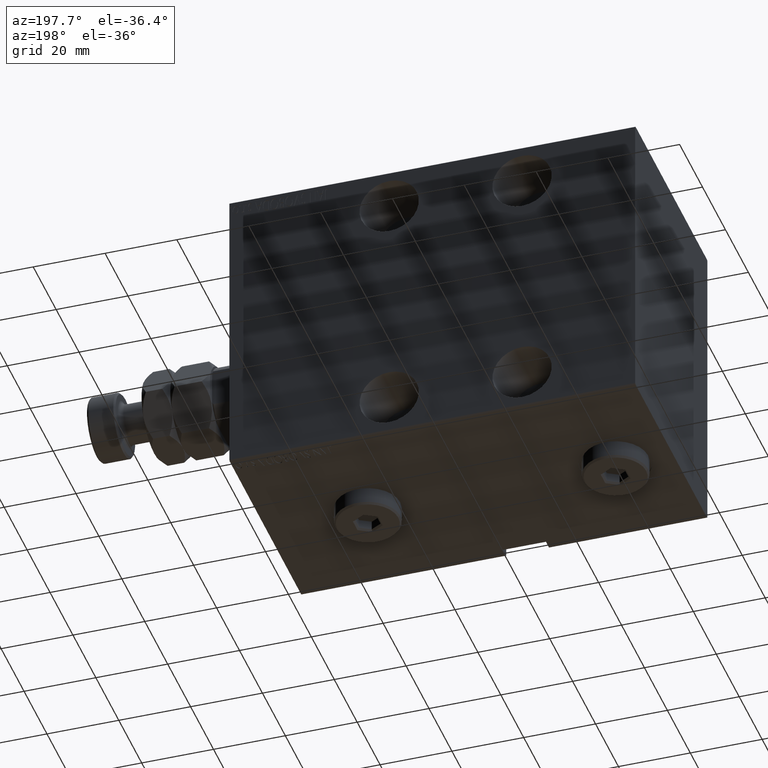
[diagram: clean part render]
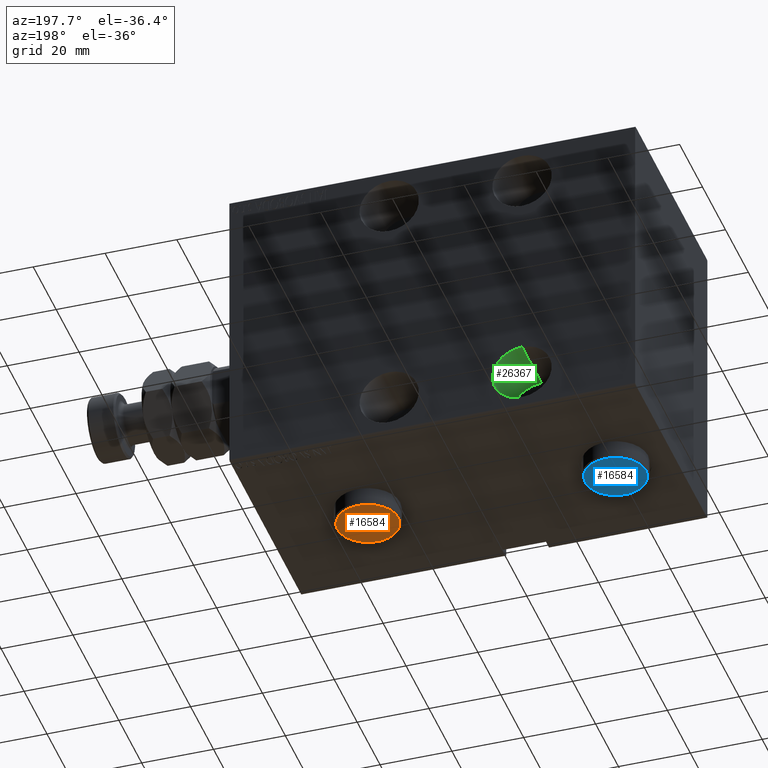
[diagram: same view with three faces highlighted in distinct colors, each labeled with its STEP entity id]
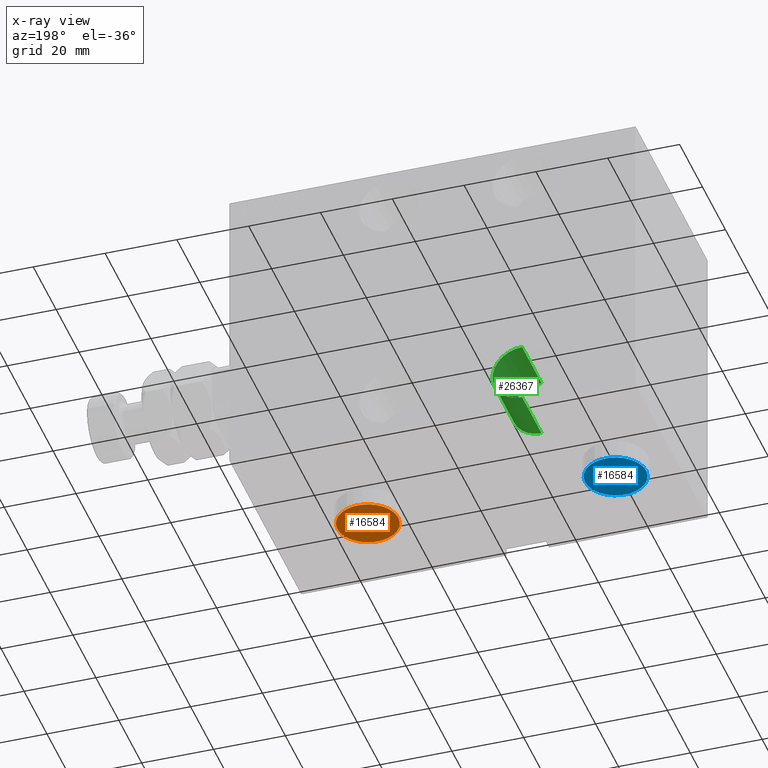
[diagram: x-ray of the same camera — body ghosted, the three highlighted faces saturated]
A machine part, auxiliary view with three faces highlighted in distinct colors.
The next image is the same camera in x-ray (body ghosted, the three faces saturated) — at least one of them is partly hidden behind the body in this view.
Their STEP definitions:

[orange] entity #16584 — the highlighted planar face has unit normal (-0, 0, -1).
#369 = LINE ( 'NONE', #42717, #24303 ) ;
#1973 = PLANE ( 'NONE',  #27004 ) ;
#2327 = DIRECTION ( 'NONE',  ( 0.000000000000000000, 0.000000000000000000, 1.000000000000000000 ) ) ;
#2999 = ORIENTED_EDGE ( 'NONE', *, *, #31758, .T. ) ;
#3183 = VERTEX_POINT ( 'NONE', #15178 ) ;
#4090 = DIRECTION ( 'NONE',  ( 0.000000000000000000, 1.000000000000000000, 0.000000000000000000 ) ) ;
#4378 = VECTOR ( 'NONE', #21003, 1000.000000000000000 ) ;
#5583 = CARTESIAN_POINT ( 'NONE',  ( -3.500000000000006661, 2.020725942163692945, 5.000000000000000000 ) ) ;
#5883 = ORIENTED_EDGE ( 'NONE', *, *, #28953, .T. ) ;
#6840 = CARTESIAN_POINT ( 'NONE',  ( -0.2500000000000027756, 3.897114317029978459, 5.000000000000000000 ) ) ;
#7716 = EDGE_CURVE ( 'NONE', #38870, #3183, #23729, .T. ) ;
#9199 = EDGE_CURVE ( 'NONE', #11310, #22625, #44358, .T. ) ;
#9686 = VERTEX_POINT ( 'NONE', #28741 ) ;
#10244 = CARTESIAN_POINT ( 'NONE',  ( 8.500000000000010658, 1.071565949253934716E-15, 5.000000000000000000 ) ) ;
#10932 = DIRECTION ( 'NONE',  ( 1.000000000000000000, 0.000000000000000000, 0.000000000000000000 ) ) ;
#11310 = VERTEX_POINT ( 'NONE', #36276 ) ;
#11662 = ORIENTED_EDGE ( 'NONE', *, *, #7716, .T. ) ;
#11986 = DIRECTION ( 'NONE',  ( 0.000000000000000000, 0.000000000000000000, 1.000000000000000000 ) ) ;
#12648 = EDGE_CURVE ( 'NONE', #3183, #9686, #40128, .T. ) ;
#13691 = CARTESIAN_POINT ( 'NONE',  ( 0.000000000000000000, 0.000000000000000000, 5.000000000000000000 ) ) ;
#13907 = CARTESIAN_POINT ( 'NONE',  ( 3.500000000000006661, 2.020725942163694722, 5.000000000000000000 ) ) ;
#14795 = LINE ( 'NONE', #42022, #38463 ) ;
#15178 = CARTESIAN_POINT ( 'NONE',  ( 3.500000000000006661, -2.020725942163693833, 5.000000000000000000 ) ) ;
#15456 = DIRECTION ( 'NONE',  ( -0.8660254037844387076, -0.4999999999999998890, 0.000000000000000000 ) ) ;
#15643 = ORIENTED_EDGE ( 'NONE', *, *, #34735, .T. ) ;
#16584 = ADVANCED_FACE ( 'NONE', ( #40829, #43860 ), #1973, .T. ) ;
#17440 = DIRECTION ( 'NONE',  ( 0.000000000000000000, 0.000000000000000000, 1.000000000000000000 ) ) ;
#19048 = CARTESIAN_POINT ( 'NONE',  ( -3.500000000000006661, -2.020725942163694278, 5.000000000000000000 ) ) ;
#19638 = EDGE_LOOP ( 'NONE', ( #34733, #5883 ) ) ;
#20621 = VECTOR ( 'NONE', #37263, 1000.000000000000000 ) ;
#21003 = DIRECTION ( 'NONE',  ( 0.8660254037844387076, 0.4999999999999998335, 0.000000000000000000 ) ) ;
#21234 = LINE ( 'NONE', #6840, #4378 ) ;
#21466 = VERTEX_POINT ( 'NONE', #19048 ) ;
#22423 = CARTESIAN_POINT ( 'NONE',  ( 0.2500000000000027756, -3.897114317029979347, 5.000000000000000000 ) ) ;
#22625 = VERTEX_POINT ( 'NONE', #10244 ) ;
#23499 = CARTESIAN_POINT ( 'NONE',  ( 3.500000000000006661, -1.732050807568878303, 5.000000000000000000 ) ) ;
#23620 = LINE ( 'NONE', #44133, #40064 ) ;
#23729 = LINE ( 'NONE', #23499, #20621 ) ;
#24245 = ORIENTED_EDGE ( 'NONE', *, *, #30310, .T. ) ;
#24303 = VECTOR ( 'NONE', #25497, 1000.000000000000000 ) ;
#25497 = DIRECTION ( 'NONE',  ( 0.8660254037844387076, -0.4999999999999998890, 0.000000000000000000 ) ) ;
#26166 = DIRECTION ( 'NONE',  ( 1.000000000000000000, 0.000000000000000000, -0.000000000000000000 ) ) ;
#26397 = CARTESIAN_POINT ( 'NONE',  ( 0.000000000000000000, 0.000000000000000000, 5.000000000000000000 ) ) ;
#26451 = DIRECTION ( 'NONE',  ( -0.8660254037844385966, 0.4999999999999999445, 0.000000000000000000 ) ) ;
#27004 = AXIS2_PLACEMENT_3D ( 'NONE', #26397, #11986, #26166 ) ;
#28389 = CARTESIAN_POINT ( 'NONE',  ( 0.000000000000000000, 0.000000000000000000, 5.000000000000000000 ) ) ;
#28741 = CARTESIAN_POINT ( 'NONE',  ( -1.006139216460143630E-15, -4.041451884327387667, 5.000000000000000000 ) ) ;
#28953 = EDGE_CURVE ( 'NONE', #22625, #11310, #35409, .T. ) ;
#29346 = VERTEX_POINT ( 'NONE', #42648 ) ;
#30310 = EDGE_CURVE ( 'NONE', #29346, #38870, #369, .T. ) ;
#31063 = VECTOR ( 'NONE', #15456, 1000.000000000000000 ) ;
#31287 = VERTEX_POINT ( 'NONE', #5583 ) ;
#31758 = EDGE_CURVE ( 'NONE', #21466, #31287, #14795, .T. ) ;
#32284 = ORIENTED_EDGE ( 'NONE', *, *, #12648, .T. ) ;
#34641 = DIRECTION ( 'NONE',  ( 1.000000000000000000, 0.000000000000000000, 0.000000000000000000 ) ) ;
#34733 = ORIENTED_EDGE ( 'NONE', *, *, #9199, .T. ) ;
#34735 = EDGE_CURVE ( 'NONE', #9686, #21466, #23620, .T. ) ;
#35409 = CIRCLE ( 'NONE', #41374, 8.500000000000010658 ) ;
#36276 = CARTESIAN_POINT ( 'NONE',  ( -8.500000000000010658, 0.000000000000000000, 5.000000000000000000 ) ) ;
#36920 = AXIS2_PLACEMENT_3D ( 'NONE', #28389, #17440, #10932 ) ;
#37263 = DIRECTION ( 'NONE',  ( 0.000000000000000000, -1.000000000000000000, 0.000000000000000000 ) ) ;
#38463 = VECTOR ( 'NONE', #4090, 1000.000000000000000 ) ;
#38546 = EDGE_CURVE ( 'NONE', #31287, #29346, #21234, .T. ) ;
#38832 = ORIENTED_EDGE ( 'NONE', *, *, #38546, .T. ) ;
#38870 = VERTEX_POINT ( 'NONE', #13907 ) ;
#40064 = VECTOR ( 'NONE', #26451, 1000.000000000000114 ) ;
#40128 = LINE ( 'NONE', #22423, #31063 ) ;
#40829 = FACE_BOUND ( 'NONE', #43652, .T. ) ;
#41374 = AXIS2_PLACEMENT_3D ( 'NONE', #13691, #2327, #34641 ) ;
#42022 = CARTESIAN_POINT ( 'NONE',  ( -3.500000000000006661, 1.732050807568878081, 5.000000000000000000 ) ) ;
#42648 = CARTESIAN_POINT ( 'NONE',  ( 1.590596867181068292E-15, 4.041451884327386779, 5.000000000000000000 ) ) ;
#42717 = CARTESIAN_POINT ( 'NONE',  ( 3.250000000000003109, 2.165063509461103042, 5.000000000000000000 ) ) ;
#43652 = EDGE_LOOP ( 'NONE', ( #2999, #38832, #24245, #11662, #32284, #15643 ) ) ;
#43860 = FACE_OUTER_BOUND ( 'NONE', #19638, .T. ) ;
#44133 = CARTESIAN_POINT ( 'NONE',  ( -3.250000000000003109, -2.165063509461102598, 5.000000000000000000 ) ) ;
#44358 = CIRCLE ( 'NONE', #36920, 8.500000000000010658 ) ;

[blue] entity #16584 — the highlighted planar face has unit normal (-0, 0, -1).
#369 = LINE ( 'NONE', #42717, #24303 ) ;
#1973 = PLANE ( 'NONE',  #27004 ) ;
#2327 = DIRECTION ( 'NONE',  ( 0.000000000000000000, 0.000000000000000000, 1.000000000000000000 ) ) ;
#2999 = ORIENTED_EDGE ( 'NONE', *, *, #31758, .T. ) ;
#3183 = VERTEX_POINT ( 'NONE', #15178 ) ;
#4090 = DIRECTION ( 'NONE',  ( 0.000000000000000000, 1.000000000000000000, 0.000000000000000000 ) ) ;
#4378 = VECTOR ( 'NONE', #21003, 1000.000000000000000 ) ;
#5583 = CARTESIAN_POINT ( 'NONE',  ( -3.500000000000006661, 2.020725942163692945, 5.000000000000000000 ) ) ;
#5883 = ORIENTED_EDGE ( 'NONE', *, *, #28953, .T. ) ;
#6840 = CARTESIAN_POINT ( 'NONE',  ( -0.2500000000000027756, 3.897114317029978459, 5.000000000000000000 ) ) ;
#7716 = EDGE_CURVE ( 'NONE', #38870, #3183, #23729, .T. ) ;
#9199 = EDGE_CURVE ( 'NONE', #11310, #22625, #44358, .T. ) ;
#9686 = VERTEX_POINT ( 'NONE', #28741 ) ;
#10244 = CARTESIAN_POINT ( 'NONE',  ( 8.500000000000010658, 1.071565949253934716E-15, 5.000000000000000000 ) ) ;
#10932 = DIRECTION ( 'NONE',  ( 1.000000000000000000, 0.000000000000000000, 0.000000000000000000 ) ) ;
#11310 = VERTEX_POINT ( 'NONE', #36276 ) ;
#11662 = ORIENTED_EDGE ( 'NONE', *, *, #7716, .T. ) ;
#11986 = DIRECTION ( 'NONE',  ( 0.000000000000000000, 0.000000000000000000, 1.000000000000000000 ) ) ;
#12648 = EDGE_CURVE ( 'NONE', #3183, #9686, #40128, .T. ) ;
#13691 = CARTESIAN_POINT ( 'NONE',  ( 0.000000000000000000, 0.000000000000000000, 5.000000000000000000 ) ) ;
#13907 = CARTESIAN_POINT ( 'NONE',  ( 3.500000000000006661, 2.020725942163694722, 5.000000000000000000 ) ) ;
#14795 = LINE ( 'NONE', #42022, #38463 ) ;
#15178 = CARTESIAN_POINT ( 'NONE',  ( 3.500000000000006661, -2.020725942163693833, 5.000000000000000000 ) ) ;
#15456 = DIRECTION ( 'NONE',  ( -0.8660254037844387076, -0.4999999999999998890, 0.000000000000000000 ) ) ;
#15643 = ORIENTED_EDGE ( 'NONE', *, *, #34735, .T. ) ;
#16584 = ADVANCED_FACE ( 'NONE', ( #40829, #43860 ), #1973, .T. ) ;
#17440 = DIRECTION ( 'NONE',  ( 0.000000000000000000, 0.000000000000000000, 1.000000000000000000 ) ) ;
#19048 = CARTESIAN_POINT ( 'NONE',  ( -3.500000000000006661, -2.020725942163694278, 5.000000000000000000 ) ) ;
#19638 = EDGE_LOOP ( 'NONE', ( #34733, #5883 ) ) ;
#20621 = VECTOR ( 'NONE', #37263, 1000.000000000000000 ) ;
#21003 = DIRECTION ( 'NONE',  ( 0.8660254037844387076, 0.4999999999999998335, 0.000000000000000000 ) ) ;
#21234 = LINE ( 'NONE', #6840, #4378 ) ;
#21466 = VERTEX_POINT ( 'NONE', #19048 ) ;
#22423 = CARTESIAN_POINT ( 'NONE',  ( 0.2500000000000027756, -3.897114317029979347, 5.000000000000000000 ) ) ;
#22625 = VERTEX_POINT ( 'NONE', #10244 ) ;
#23499 = CARTESIAN_POINT ( 'NONE',  ( 3.500000000000006661, -1.732050807568878303, 5.000000000000000000 ) ) ;
#23620 = LINE ( 'NONE', #44133, #40064 ) ;
#23729 = LINE ( 'NONE', #23499, #20621 ) ;
#24245 = ORIENTED_EDGE ( 'NONE', *, *, #30310, .T. ) ;
#24303 = VECTOR ( 'NONE', #25497, 1000.000000000000000 ) ;
#25497 = DIRECTION ( 'NONE',  ( 0.8660254037844387076, -0.4999999999999998890, 0.000000000000000000 ) ) ;
#26166 = DIRECTION ( 'NONE',  ( 1.000000000000000000, 0.000000000000000000, -0.000000000000000000 ) ) ;
#26397 = CARTESIAN_POINT ( 'NONE',  ( 0.000000000000000000, 0.000000000000000000, 5.000000000000000000 ) ) ;
#26451 = DIRECTION ( 'NONE',  ( -0.8660254037844385966, 0.4999999999999999445, 0.000000000000000000 ) ) ;
#27004 = AXIS2_PLACEMENT_3D ( 'NONE', #26397, #11986, #26166 ) ;
#28389 = CARTESIAN_POINT ( 'NONE',  ( 0.000000000000000000, 0.000000000000000000, 5.000000000000000000 ) ) ;
#28741 = CARTESIAN_POINT ( 'NONE',  ( -1.006139216460143630E-15, -4.041451884327387667, 5.000000000000000000 ) ) ;
#28953 = EDGE_CURVE ( 'NONE', #22625, #11310, #35409, .T. ) ;
#29346 = VERTEX_POINT ( 'NONE', #42648 ) ;
#30310 = EDGE_CURVE ( 'NONE', #29346, #38870, #369, .T. ) ;
#31063 = VECTOR ( 'NONE', #15456, 1000.000000000000000 ) ;
#31287 = VERTEX_POINT ( 'NONE', #5583 ) ;
#31758 = EDGE_CURVE ( 'NONE', #21466, #31287, #14795, .T. ) ;
#32284 = ORIENTED_EDGE ( 'NONE', *, *, #12648, .T. ) ;
#34641 = DIRECTION ( 'NONE',  ( 1.000000000000000000, 0.000000000000000000, 0.000000000000000000 ) ) ;
#34733 = ORIENTED_EDGE ( 'NONE', *, *, #9199, .T. ) ;
#34735 = EDGE_CURVE ( 'NONE', #9686, #21466, #23620, .T. ) ;
#35409 = CIRCLE ( 'NONE', #41374, 8.500000000000010658 ) ;
#36276 = CARTESIAN_POINT ( 'NONE',  ( -8.500000000000010658, 0.000000000000000000, 5.000000000000000000 ) ) ;
#36920 = AXIS2_PLACEMENT_3D ( 'NONE', #28389, #17440, #10932 ) ;
#37263 = DIRECTION ( 'NONE',  ( 0.000000000000000000, -1.000000000000000000, 0.000000000000000000 ) ) ;
#38463 = VECTOR ( 'NONE', #4090, 1000.000000000000000 ) ;
#38546 = EDGE_CURVE ( 'NONE', #31287, #29346, #21234, .T. ) ;
#38832 = ORIENTED_EDGE ( 'NONE', *, *, #38546, .T. ) ;
#38870 = VERTEX_POINT ( 'NONE', #13907 ) ;
#40064 = VECTOR ( 'NONE', #26451, 1000.000000000000114 ) ;
#40128 = LINE ( 'NONE', #22423, #31063 ) ;
#40829 = FACE_BOUND ( 'NONE', #43652, .T. ) ;
#41374 = AXIS2_PLACEMENT_3D ( 'NONE', #13691, #2327, #34641 ) ;
#42022 = CARTESIAN_POINT ( 'NONE',  ( -3.500000000000006661, 1.732050807568878081, 5.000000000000000000 ) ) ;
#42648 = CARTESIAN_POINT ( 'NONE',  ( 1.590596867181068292E-15, 4.041451884327386779, 5.000000000000000000 ) ) ;
#42717 = CARTESIAN_POINT ( 'NONE',  ( 3.250000000000003109, 2.165063509461103042, 5.000000000000000000 ) ) ;
#43652 = EDGE_LOOP ( 'NONE', ( #2999, #38832, #24245, #11662, #32284, #15643 ) ) ;
#43860 = FACE_OUTER_BOUND ( 'NONE', #19638, .T. ) ;
#44133 = CARTESIAN_POINT ( 'NONE',  ( -3.250000000000003109, -2.165063509461102598, 5.000000000000000000 ) ) ;
#44358 = CIRCLE ( 'NONE', #36920, 8.500000000000010658 ) ;

[green] entity #26367 — the highlighted cylindrical surface (edge-blend (fillet) strip) has radius 8.25 mm, axis along (0, 1, -0).
#1077 = DIRECTION ( 'NONE',  ( -0.000000000000000000, -1.000000000000000000, -0.000000000000000000 ) ) ;
#1158 = AXIS2_PLACEMENT_3D ( 'NONE', #27903, #17416, #16969 ) ;
#1515 = CARTESIAN_POINT ( 'NONE',  ( 81.50000000000001421, -31.49999999999999289, -39.75000000000004263 ) ) ;
#2089 = VERTEX_POINT ( 'NONE', #3374 ) ;
#3117 = DIRECTION ( 'NONE',  ( 0.000000000000000000, 0.000000000000000000, -1.000000000000000000 ) ) ;
#3374 = CARTESIAN_POINT ( 'NONE',  ( 81.50000000000001421, -14.49999999999999289, -39.75000000000004263 ) ) ;
#4137 = AXIS2_PLACEMENT_3D ( 'NONE', #22008, #1077, #36451 ) ;
#5006 = EDGE_CURVE ( 'NONE', #2089, #36145, #14800, .T. ) ;
#5820 = ORIENTED_EDGE ( 'NONE', *, *, #14695, .T. ) ;
#6017 = CARTESIAN_POINT ( 'NONE',  ( 81.50000000000001421, -14.49999999999999289, -23.25000000000001421 ) ) ;
#9228 = CARTESIAN_POINT ( 'NONE',  ( 81.50000000000001421, -31.49999999999999289, -23.25000000000001421 ) ) ;
#10093 = DIRECTION ( 'NONE',  ( 0.000000000000000000, -1.000000000000000000, 0.000000000000000000 ) ) ;
#13817 = CARTESIAN_POINT ( 'NONE',  ( 81.50000000000001421, -31.49999999999999289, -31.50000000000002842 ) ) ;
#14695 = EDGE_CURVE ( 'NONE', #24107, #27787, #41387, .T. ) ;
#14800 = LINE ( 'NONE', #22687, #16138 ) ;
#16138 = VECTOR ( 'NONE', #26420, 1000.000000000000000 ) ;
#16969 = DIRECTION ( 'NONE',  ( 0.000000000000000000, 0.000000000000000000, -1.000000000000000000 ) ) ;
#17015 = ORIENTED_EDGE ( 'NONE', *, *, #21302, .F. ) ;
#17416 = DIRECTION ( 'NONE',  ( 0.000000000000000000, -1.000000000000000000, 0.000000000000000000 ) ) ;
#18211 = CIRCLE ( 'NONE', #1158, 8.250000000000014211 ) ;
#19222 = CYLINDRICAL_SURFACE ( 'NONE', #4137, 8.250000000000014211 ) ;
#19968 = VECTOR ( 'NONE', #23685, 1000.000000000000000 ) ;
#21302 = EDGE_CURVE ( 'NONE', #24107, #2089, #18211, .T. ) ;
#22008 = CARTESIAN_POINT ( 'NONE',  ( 81.50000000000001421, -14.49999999999999289, -31.50000000000002842 ) ) ;
#22687 = CARTESIAN_POINT ( 'NONE',  ( 81.50000000000001421, -14.49999999999999289, -39.75000000000004263 ) ) ;
#23685 = DIRECTION ( 'NONE',  ( -0.000000000000000000, -1.000000000000000000, -0.000000000000000000 ) ) ;
#24107 = VERTEX_POINT ( 'NONE', #30649 ) ;
#26367 = ADVANCED_FACE ( 'NONE', ( #32965 ), #19222, .F. ) ;
#26420 = DIRECTION ( 'NONE',  ( -0.000000000000000000, -1.000000000000000000, -0.000000000000000000 ) ) ;
#27787 = VERTEX_POINT ( 'NONE', #9228 ) ;
#27903 = CARTESIAN_POINT ( 'NONE',  ( 81.50000000000001421, -14.49999999999999289, -31.50000000000002842 ) ) ;
#30649 = CARTESIAN_POINT ( 'NONE',  ( 81.50000000000001421, -14.49999999999999289, -23.25000000000001421 ) ) ;
#32965 = FACE_OUTER_BOUND ( 'NONE', #33988, .T. ) ;
#33988 = EDGE_LOOP ( 'NONE', ( #17015, #5820, #42157, #42997 ) ) ;
#35768 = AXIS2_PLACEMENT_3D ( 'NONE', #13817, #10093, #3117 ) ;
#36145 = VERTEX_POINT ( 'NONE', #1515 ) ;
#36451 = DIRECTION ( 'NONE',  ( 0.000000000000000000, 0.000000000000000000, -1.000000000000000000 ) ) ;
#41387 = LINE ( 'NONE', #6017, #19968 ) ;
#42157 = ORIENTED_EDGE ( 'NONE', *, *, #45213, .T. ) ;
#42997 = ORIENTED_EDGE ( 'NONE', *, *, #5006, .F. ) ;
#45213 = EDGE_CURVE ( 'NONE', #27787, #36145, #45408, .T. ) ;
#45408 = CIRCLE ( 'NONE', #35768, 8.250000000000014211 ) ;